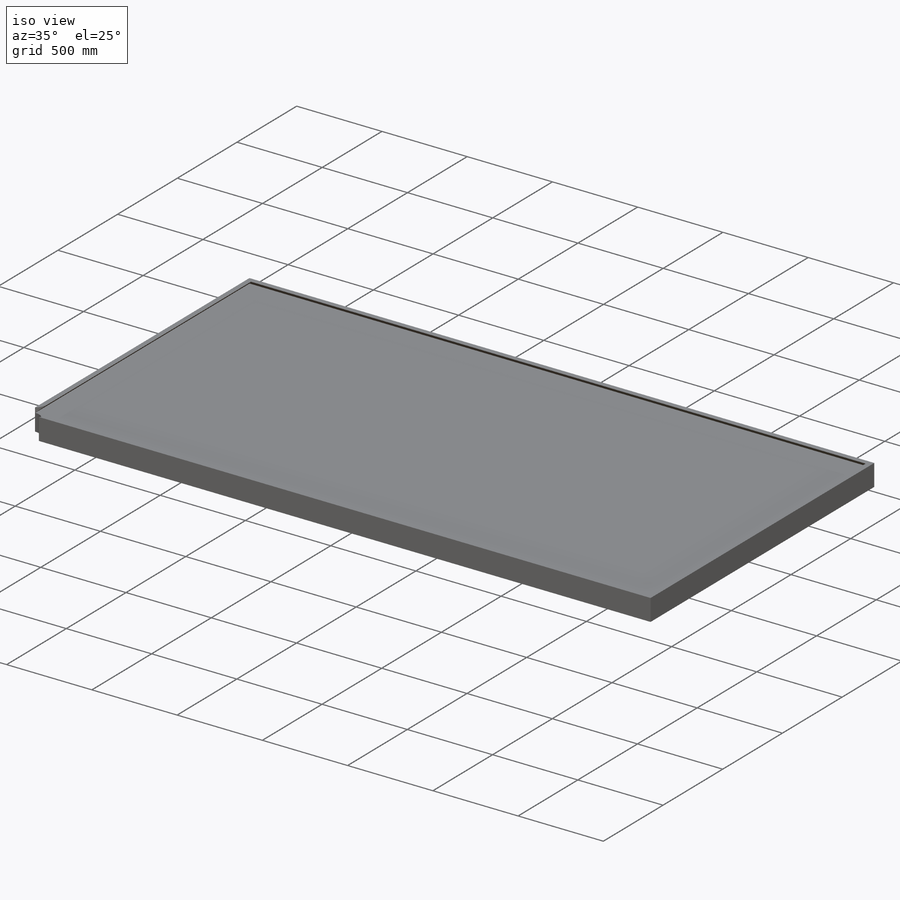
[diagram: iso view]
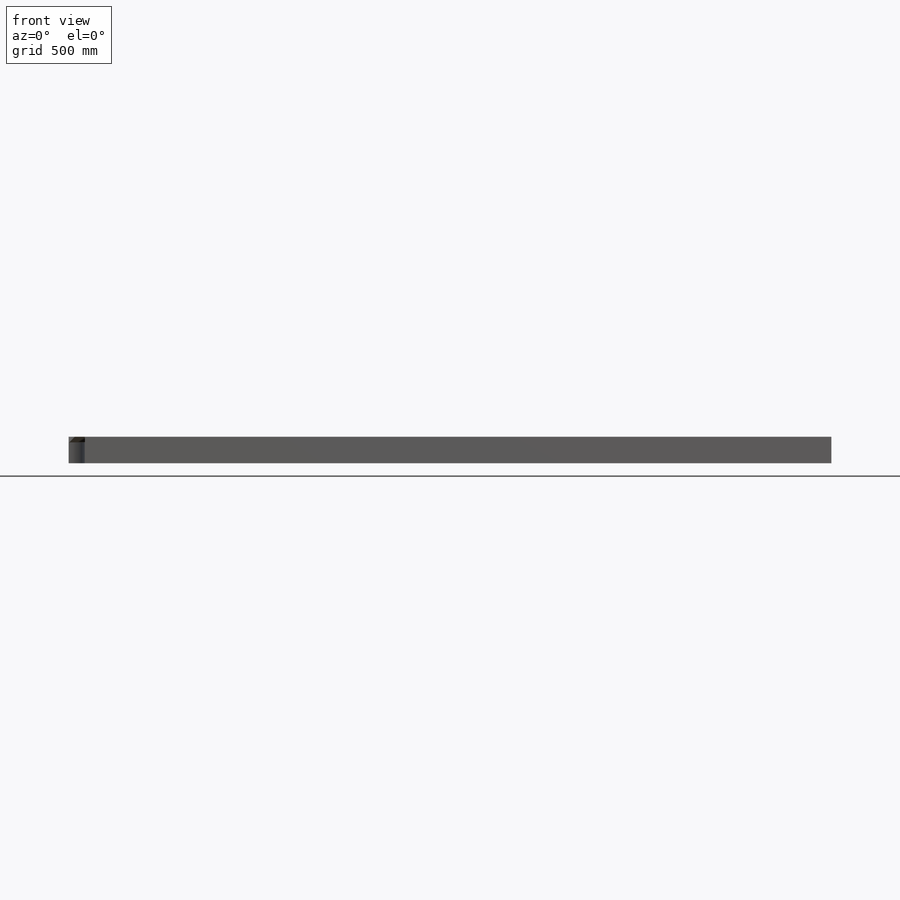
[diagram: front view]
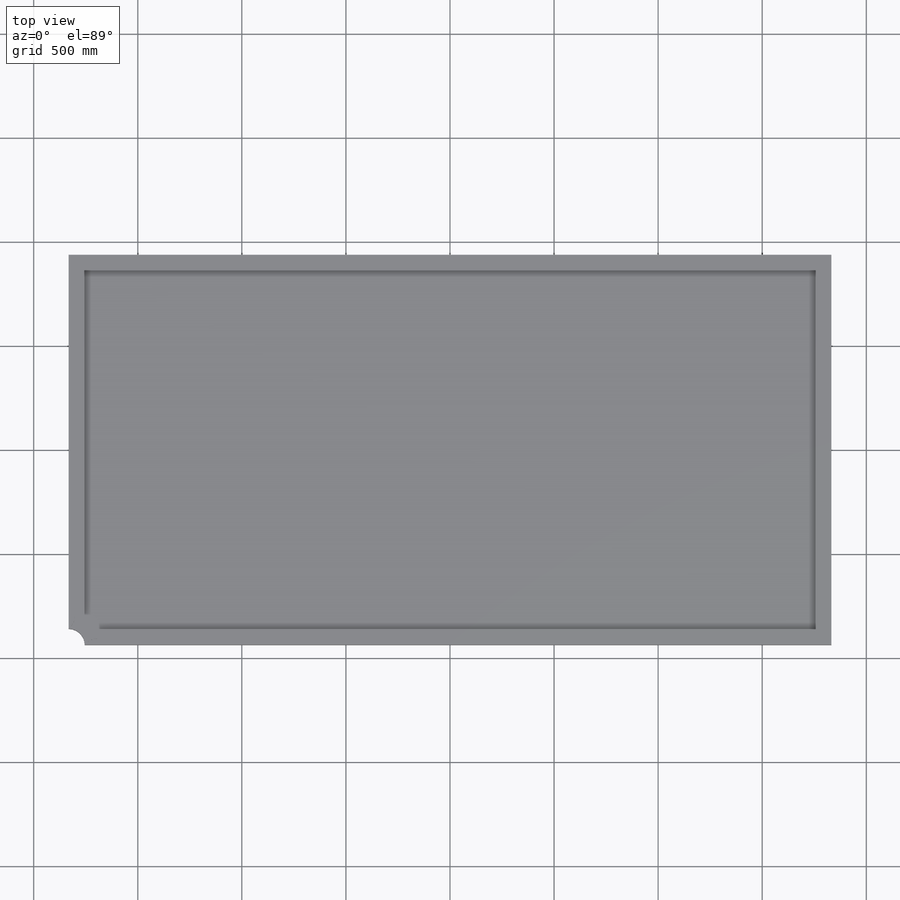
[diagram: top view]
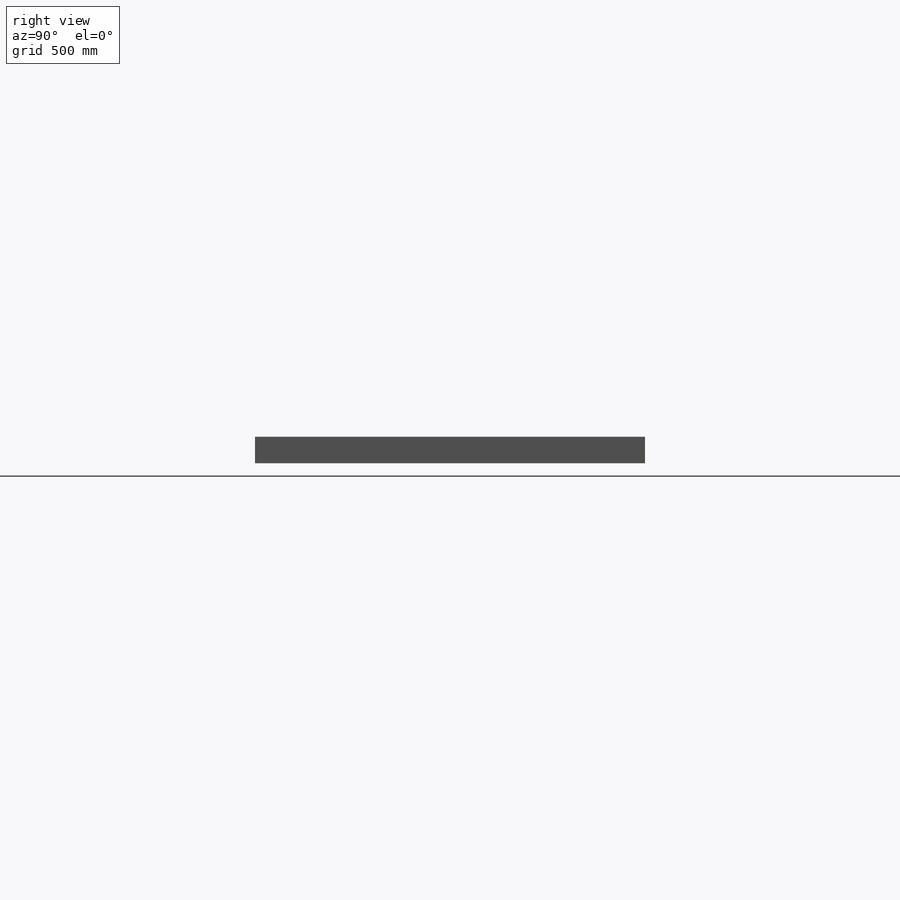
[diagram: right view]
SOLIDWORKS PART (.sldprt)
format: sldprt  version: not decoded by parser v0  size: 208,384 bytes
history: native  units: mm
features: sketch x4, plane x3, extrude x2, cut_extrude x2, material x1, chamfer x1 (+9 scaffold rows collapsed)
feature tree (22):
  scaffold x9  (default folders/planes/origin — collapsed)
  material  "Materiał <nieokreślony>"
  plane  "Płaszczyzna przednia"
  plane  "Płaszczyzna górna"
  plane  "Płaszczyzna prawa"
  sketch  "Szkic4"  dims[D1=3569.0mm D2=1778.0mm D3=48.0mm D4=48.0mm]
  extrude  "Dodanie-wyciągnięcie3"  Depth=27mm
  chamfer  "Sfazowanie1"  Distance=45mm Angle=45deg
  sketch  "Szkic5"
  extrude  "Dodanie-wyciągnięcie4"  Depth=100mm
  sketch  "Szkic6"  dims[D4=152.4mm D6=152.4mm D1=138.0mm D2=138.0mm D3=76.2mm D5=76.2mm]
  cut_extrude  "Wytnij-wyciągnięcie1"  [1 undecoded]
  sketch  "Szkic7"
  cut_extrude  "Wytnij-wyciągnięcie2"  [1 undecoded]
decode coverage: 5 of 9 modeling features carry decoded parameters
note: 2 parameter values undecoded
note: suppression state not decoded; provenance and decode notes live in map.json
